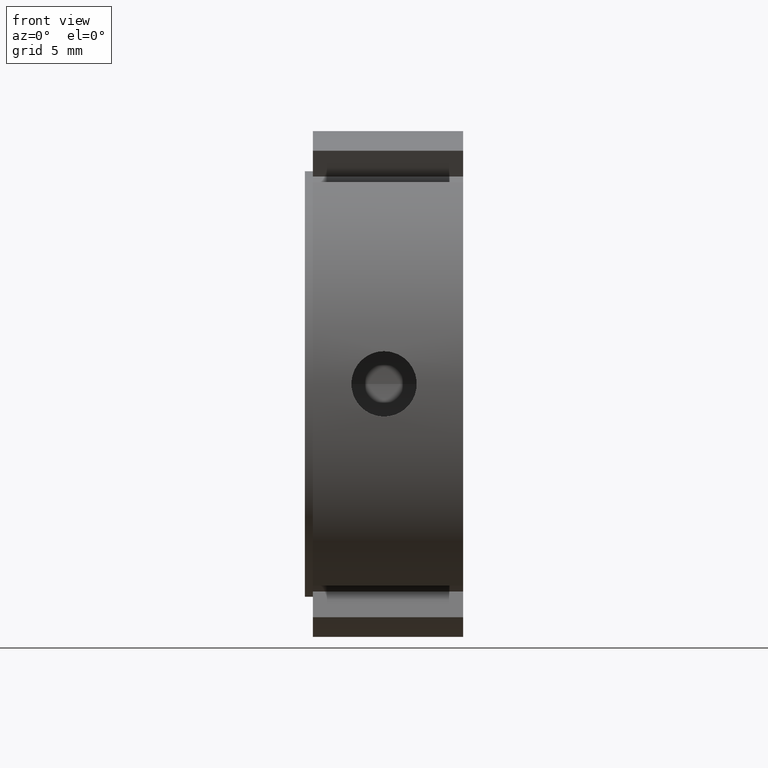
[diagram: clean part render]
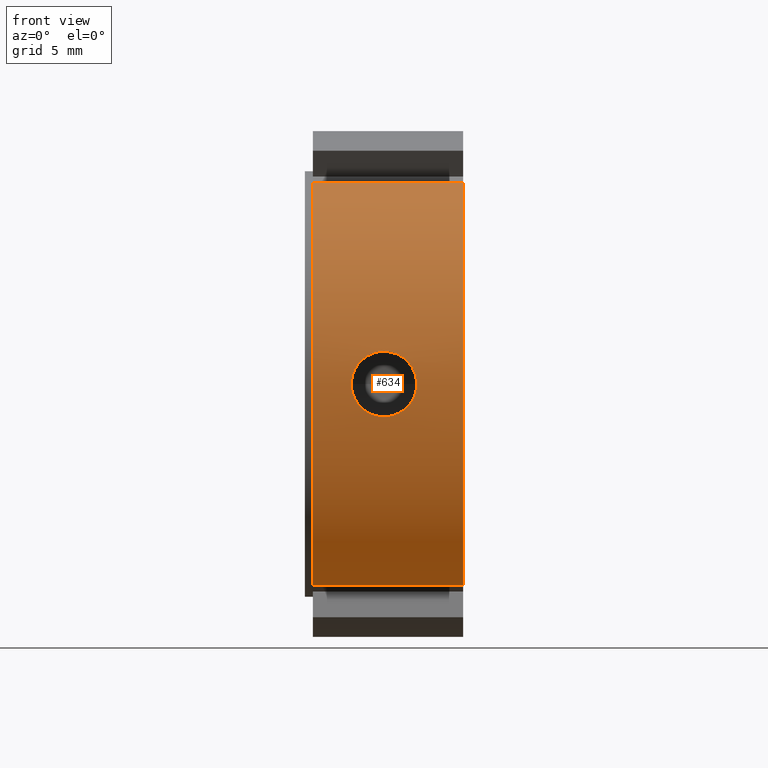
[diagram: same view with one face highlighted and labeled with its STEP entity id]
A machine part, front view. The second image highlights one B-rep face of the part: STEP entity #634.
In plain terms, the highlighted cylindrical surface (partial cylindrical patch) has radius 16 mm, axis along (1, 0, 0).
Its self-contained STEP definition (entity closure, byte-faithful):
#75=CARTESIAN_POINT('',(0.499999999999998,-9.669304740762655,-12.747727084867515));
#76=VERTEX_POINT('',#75);
#91=CARTESIAN_POINT('',(9.999999999999996,-9.669304740762655,-12.747727084867515));
#92=VERTEX_POINT('',#91);
#99=CARTESIAN_POINT('',(0.499999999999998,-9.669304740762657,-12.747727084867513));
#100=DIRECTION('',(1.0,0.0,0.0));
#101=VECTOR('',#100,9.499999999999996);
#102=LINE('',#99,#101);
#103=EDGE_CURVE('',#76,#92,#102,.T.);
#303=CARTESIAN_POINT('',(0.499999999999998,-9.669304740762645,12.747727084867522));
#304=VERTEX_POINT('',#303);
#313=CARTESIAN_POINT('',(9.999999999999996,-9.669304740762645,12.747727084867522));
#314=VERTEX_POINT('',#313);
#315=CARTESIAN_POINT('',(9.999999999999995,-9.669304740762645,12.747727084867520));
#316=DIRECTION('',(-1.0,0.0,0.0));
#317=VECTOR('',#316,9.499999999999996);
#318=LINE('',#315,#317);
#319=EDGE_CURVE('',#314,#304,#318,.T.);
#499=CARTESIAN_POINT('',(9.999999999999996,0.0,0.0));
#500=DIRECTION('',(1.0,0.0,0.0));
#501=DIRECTION('',(0.0,1.0,0.0));
#502=AXIS2_PLACEMENT_3D('',#499,#500,#501);
#503=CIRCLE('',#502,15.999999999999998);
#504=EDGE_CURVE('',#314,#92,#503,.T.);
#576=CARTESIAN_POINT('',(5.249999999999996,0.0,0.0));
#577=DIRECTION('',(1.0,0.0,0.0));
#578=DIRECTION('',(0.0,1.0,0.0));
#579=AXIS2_PLACEMENT_3D('',#576,#577,#578);
#580=CYLINDRICAL_SURFACE('',#579,15.999999999999998);
#581=ORIENTED_EDGE('',*,*,#103,.T.);
#582=ORIENTED_EDGE('',*,*,#504,.F.);
#583=ORIENTED_EDGE('',*,*,#319,.T.);
#584=CARTESIAN_POINT('',(0.499999999999998,0.0,0.0));
#585=DIRECTION('',(1.0,0.0,0.0));
#586=DIRECTION('',(0.0,1.0,0.0));
#587=AXIS2_PLACEMENT_3D('',#584,#585,#586);
#588=CIRCLE('',#587,15.999999999999998);
#589=EDGE_CURVE('',#304,#76,#588,.T.);
#590=ORIENTED_EDGE('',*,*,#589,.T.);
#591=EDGE_LOOP('',(#581,#582,#583,#590));
#592=FACE_OUTER_BOUND('',#591,.T.);
#593=CARTESIAN_POINT('',(4.999999999999996,-15.865922948256113,2.067000000000000));
#594=VERTEX_POINT('',#593);
#595=CARTESIAN_POINT('',(4.999999999999996,-15.865922948256113,2.067000000000000));
#596=CARTESIAN_POINT('',(5.259850414627227,-15.865922948256113,2.067000000000000));
#597=CARTESIAN_POINT('',(5.536820394372653,-15.872965455047579,2.015009300680839));
#598=CARTESIAN_POINT('',(6.045999172821704,-15.898332311683532,1.803974624096363));
#599=CARTESIAN_POINT('',(6.278233054693932,-15.916282668499395,1.644946378731251));
#600=CARTESIAN_POINT('',(6.644944629392624,-15.949922185118467,1.278234804032559));
#601=CARTESIAN_POINT('',(6.803974245744746,-15.967806957822718,1.046000162625035));
#602=CARTESIAN_POINT('',(7.015009926134721,-15.993023508625830,0.536818808367556));
#603=CARTESIAN_POINT('',(7.066999999999996,-15.999999999999998,0.259847935489789));
#604=CARTESIAN_POINT('',(7.066999999999997,-16.0,-0.259847935489789));
#605=CARTESIAN_POINT('',(7.015009926134721,-15.993023508625830,-0.536818808367555));
#606=CARTESIAN_POINT('',(6.803974245744746,-15.967806957822718,-1.046000162625034));
#607=CARTESIAN_POINT('',(6.644944629392626,-15.949922185118467,-1.278234804032559));
#608=CARTESIAN_POINT('',(6.278233054693933,-15.916282668499395,-1.644946378731251));
#609=CARTESIAN_POINT('',(6.045999172821702,-15.898332311683532,-1.803974624096363));
#610=CARTESIAN_POINT('',(5.536820394372652,-15.872965455047579,-2.015009300680839));
#611=CARTESIAN_POINT('',(5.259850414627227,-15.865922948256113,-2.067000000000000));
#612=CARTESIAN_POINT('',(4.740149585372764,-15.865922948256113,-2.067000000000000));
#613=CARTESIAN_POINT('',(4.463179605627338,-15.872965455047579,-2.015009300680839));
#614=CARTESIAN_POINT('',(3.954000827178289,-15.898332311683532,-1.803974624096363));
#615=CARTESIAN_POINT('',(3.721766945306059,-15.916282668499395,-1.644946378731251));
#616=CARTESIAN_POINT('',(3.355055370607367,-15.949922185118467,-1.278234804032560));
#617=CARTESIAN_POINT('',(3.196025754255246,-15.967806957822718,-1.046000162625036));
#618=CARTESIAN_POINT('',(2.984990073865271,-15.993023508625830,-0.536818808367557));
#619=CARTESIAN_POINT('',(2.932999999999995,-15.999999999999998,-0.259847935489790));
#620=CARTESIAN_POINT('',(2.932999999999995,-15.999999999999998,0.259847935489789));
#621=CARTESIAN_POINT('',(2.984990073865271,-15.993023508625830,0.536818808367556));
#622=CARTESIAN_POINT('',(3.196025754255246,-15.967806957822718,1.046000162625034));
#623=CARTESIAN_POINT('',(3.355055370607366,-15.949922185118467,1.278234804032558));
#624=CARTESIAN_POINT('',(3.721766945306058,-15.916282668499395,1.644946378731251));
#625=CARTESIAN_POINT('',(3.954000827178287,-15.898332311683532,1.803974624096362));
#626=CARTESIAN_POINT('',(4.463179605627338,-15.872965455047579,2.015009300680839));
#627=CARTESIAN_POINT('',(4.740149585372764,-15.865922948256113,2.067000000000000));
#628=CARTESIAN_POINT('',(4.999999999999996,-15.865922948256113,2.067000000000000));
#629=B_SPLINE_CURVE_WITH_KNOTS('',3,(#595,#596,#597,#598,#599,#600,#601,#602,#603,#604,#605,#606,#607,#608,#609,#610,#611,#612,#613,#614,#615,#616,#617,#618,#619,#620,#621,#622,#623,#624,#625,#626,#627,#628),.UNSPECIFIED.,.T.,.U.,(4,2,2,2,2,2,2,2,2,2,2,2,2,2,2,2,4),(0.0,0.077955124388169,0.155910248776339,0.233864629423276,0.311819010070212,0.389773390717149,0.467727771364086,0.545682895752255,0.623638020140425,0.701593144528594,0.779548268916764,0.857502649563700,0.935457030210637,1.013411410857574,1.091365791504511,1.169320915892680,1.247276040280850),.UNSPECIFIED.);
#630=EDGE_CURVE('',#594,#594,#629,.T.);
#631=ORIENTED_EDGE('',*,*,#630,.T.);
#632=EDGE_LOOP('',(#631));
#633=FACE_BOUND('',#632,.T.);
#634=ADVANCED_FACE('',(#592,#633),#580,.T.);